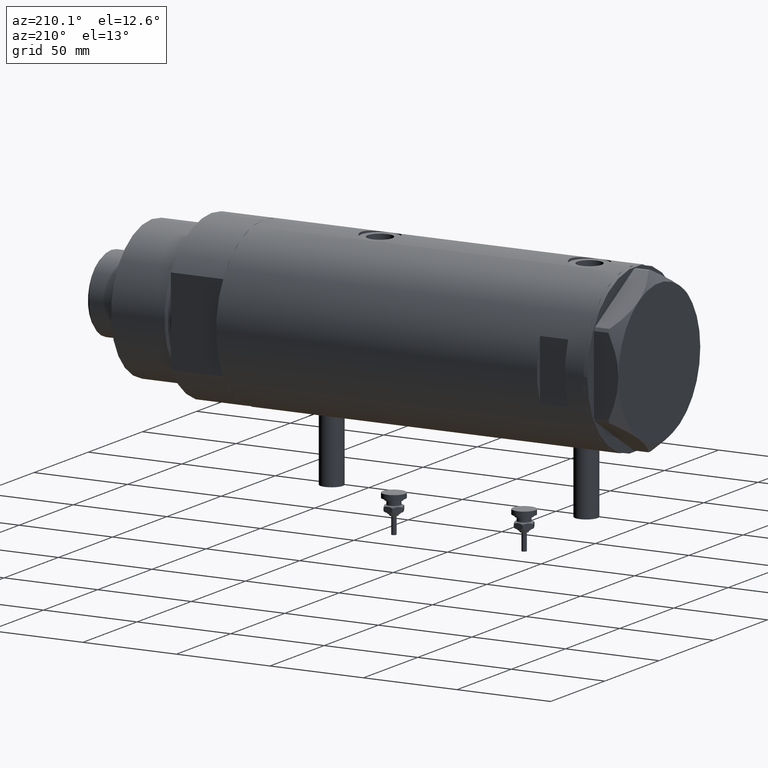
[diagram: clean part render]
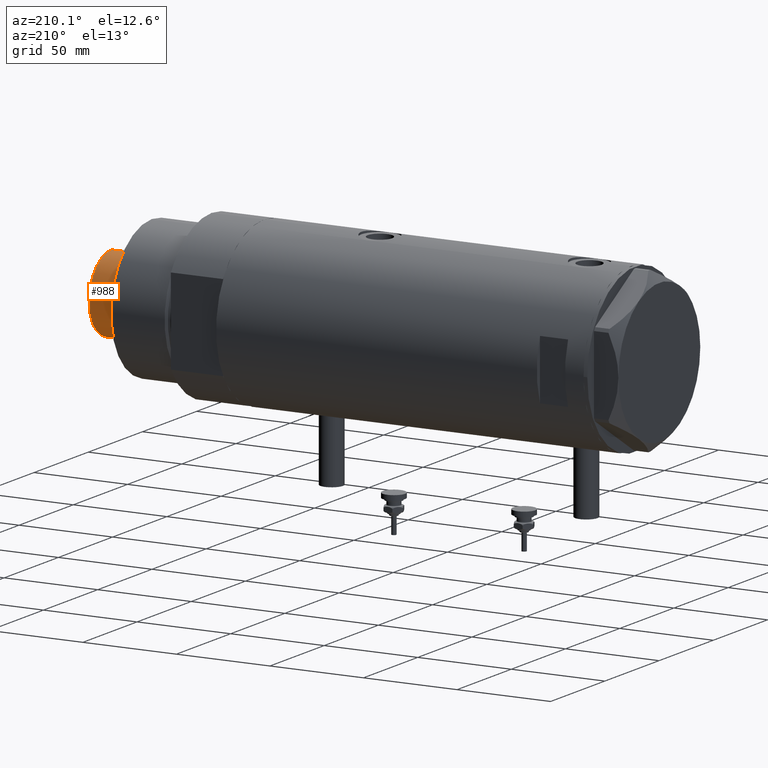
[diagram: same view with one face highlighted and labeled with its STEP entity id]
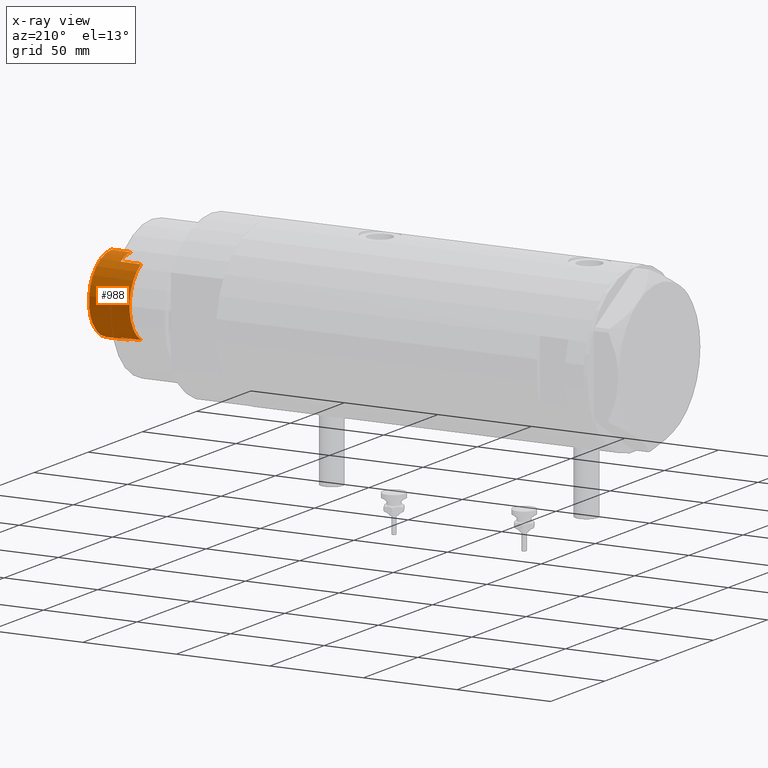
[diagram: x-ray of the same camera — body ghosted, the highlighted face saturated]
A machine part, auxiliary view. The second image highlights one B-rep face of the part: STEP entity #988.
The next image is the same camera in x-ray: the body ghosted, the highlighted face saturated — about 0% of this face is hidden behind the body in this view.
In plain terms, the highlighted cylindrical surface (partial cylindrical patch) has radius 20.5 mm, axis along (-1, -0, 0).
Its self-contained STEP definition (entity closure, byte-faithful):
#51 = CARTESIAN_POINT ( 'NONE',  ( 0.000000000000000000, 0.000000000000000000, 241.3000000000000114 ) ) ;
#77 = AXIS2_PLACEMENT_3D ( 'NONE', #3176, #1446, #5965 ) ;
#213 = ORIENTED_EDGE ( 'NONE', *, *, #1571, .T. ) ;
#341 = VERTEX_POINT ( 'NONE', #4901 ) ;
#496 = CARTESIAN_POINT ( 'NONE',  ( -20.50000000000000355, 0.000000000000000000, 251.9000000000001194 ) ) ;
#502 = VECTOR ( 'NONE', #5921, 1000.000000000000000 ) ;
#512 = LINE ( 'NONE', #3313, #3019 ) ;
#647 = ORIENTED_EDGE ( 'NONE', *, *, #3474, .F. ) ;
#658 = VERTEX_POINT ( 'NONE', #1661 ) ;
#720 = VERTEX_POINT ( 'NONE', #5461 ) ;
#750 = DIRECTION ( 'NONE',  ( 0.000000000000000000, 0.000000000000000000, 1.000000000000000000 ) ) ;
#819 = VERTEX_POINT ( 'NONE', #2845 ) ;
#886 = VERTEX_POINT ( 'NONE', #2559 ) ;
#953 = LINE ( 'NONE', #1367, #502 ) ;
#988 = ADVANCED_FACE ( 'NONE', ( #4192 ), #4095, .T. ) ;
#1006 = DIRECTION ( 'NONE',  ( 1.000000000000000000, 0.000000000000000000, 0.000000000000000000 ) ) ;
#1143 = DIRECTION ( 'NONE',  ( -0.000000000000000000, -0.000000000000000000, -1.000000000000000000 ) ) ;
#1324 = ORIENTED_EDGE ( 'NONE', *, *, #5831, .T. ) ;
#1367 = CARTESIAN_POINT ( 'NONE',  ( -17.97852886083842705, 9.849999999999997868, 241.3000000000000114 ) ) ;
#1446 = DIRECTION ( 'NONE',  ( -0.000000000000000000, -0.000000000000000000, -1.000000000000000000 ) ) ;
#1556 = AXIS2_PLACEMENT_3D ( 'NONE', #2251, #4120, #5519 ) ;
#1571 = EDGE_CURVE ( 'NONE', #886, #819, #1728, .T. ) ;
#1586 = VERTEX_POINT ( 'NONE', #3536 ) ;
#1661 = CARTESIAN_POINT ( 'NONE',  ( 20.50000000000000355, 2.510525938252074481E-15, 251.9000000000001194 ) ) ;
#1662 = AXIS2_PLACEMENT_3D ( 'NONE', #1892, #5619, #1006 ) ;
#1686 = DIRECTION ( 'NONE',  ( 1.000000000000000000, 0.000000000000000000, 0.000000000000000000 ) ) ;
#1728 = CIRCLE ( 'NONE', #4630, 20.50000000000000000 ) ;
#1892 = CARTESIAN_POINT ( 'NONE',  ( 0.000000000000000000, 0.000000000000000000, 230.3000000000000114 ) ) ;
#2064 = VERTEX_POINT ( 'NONE', #3806 ) ;
#2233 = VECTOR ( 'NONE', #3607, 1000.000000000000000 ) ;
#2251 = CARTESIAN_POINT ( 'NONE',  ( 0.000000000000000000, 0.000000000000000000, 251.9000000000001194 ) ) ;
#2260 = ORIENTED_EDGE ( 'NONE', *, *, #2424, .T. ) ;
#2424 = EDGE_CURVE ( 'NONE', #5229, #658, #3578, .T. ) ;
#2559 = CARTESIAN_POINT ( 'NONE',  ( 20.50000000000000000, 2.510525938252074481E-15, 241.3000000000000114 ) ) ;
#2651 = EDGE_LOOP ( 'NONE', ( #2260, #3809, #213, #1324, #3570, #4016, #4944, #647 ) ) ;
#2698 = CARTESIAN_POINT ( 'NONE',  ( 0.000000000000000000, 0.000000000000000000, 241.3000000000000114 ) ) ;
#2845 = CARTESIAN_POINT ( 'NONE',  ( 17.97852886083842705, 9.849999999999997868, 241.3000000000000114 ) ) ;
#2937 = DIRECTION ( 'NONE',  ( 0.000000000000000000, 0.000000000000000000, 1.000000000000000000 ) ) ;
#3019 = VECTOR ( 'NONE', #3346, 1000.000000000000000 ) ;
#3176 = CARTESIAN_POINT ( 'NONE',  ( 0.000000000000000000, 0.000000000000000000, 241.3000000000000114 ) ) ;
#3313 = CARTESIAN_POINT ( 'NONE',  ( 20.50000000000000355, 2.510525938252074481E-15, 241.3000000000000114 ) ) ;
#3346 = DIRECTION ( 'NONE',  ( -0.000000000000000000, -0.000000000000000000, -1.000000000000000000 ) ) ;
#3474 = EDGE_CURVE ( 'NONE', #5229, #720, #5430, .T. ) ;
#3536 = CARTESIAN_POINT ( 'NONE',  ( -17.97852886083842705, 9.849999999999965894, 230.3000000000000114 ) ) ;
#3570 = ORIENTED_EDGE ( 'NONE', *, *, #4683, .T. ) ;
#3578 = CIRCLE ( 'NONE', #1556, 20.50000000000000355 ) ;
#3589 = VECTOR ( 'NONE', #1143, 1000.000000000000000 ) ;
#3607 = DIRECTION ( 'NONE',  ( -0.000000000000000000, -0.000000000000000000, -1.000000000000000000 ) ) ;
#3668 = EDGE_CURVE ( 'NONE', #341, #720, #5826, .T. ) ;
#3806 = CARTESIAN_POINT ( 'NONE',  ( 17.97852886083842705, 9.849999999999997868, 230.3000000000000114 ) ) ;
#3809 = ORIENTED_EDGE ( 'NONE', *, *, #4676, .T. ) ;
#4016 = ORIENTED_EDGE ( 'NONE', *, *, #5761, .F. ) ;
#4044 = LINE ( 'NONE', #5911, #2233 ) ;
#4095 = CYLINDRICAL_SURFACE ( 'NONE', #77, 20.50000000000000355 ) ;
#4120 = DIRECTION ( 'NONE',  ( 0.000000000000000000, 0.000000000000000000, -1.000000000000000000 ) ) ;
#4192 = FACE_OUTER_BOUND ( 'NONE', #2651, .T. ) ;
#4277 = CIRCLE ( 'NONE', #1662, 20.49999999999998934 ) ;
#4295 = DIRECTION ( 'NONE',  ( 1.000000000000000000, 0.000000000000000000, 0.000000000000000000 ) ) ;
#4630 = AXIS2_PLACEMENT_3D ( 'NONE', #2698, #750, #1686 ) ;
#4676 = EDGE_CURVE ( 'NONE', #658, #886, #512, .T. ) ;
#4683 = EDGE_CURVE ( 'NONE', #2064, #1586, #4277, .T. ) ;
#4901 = CARTESIAN_POINT ( 'NONE',  ( -17.97852886083842705, 9.849999999999997868, 241.3000000000000114 ) ) ;
#4944 = ORIENTED_EDGE ( 'NONE', *, *, #3668, .T. ) ;
#4957 = CARTESIAN_POINT ( 'NONE',  ( -20.50000000000000355, 0.000000000000000000, 241.3000000000000114 ) ) ;
#5229 = VERTEX_POINT ( 'NONE', #496 ) ;
#5430 = LINE ( 'NONE', #4957, #3589 ) ;
#5461 = CARTESIAN_POINT ( 'NONE',  ( -20.50000000000000000, 0.000000000000000000, 241.3000000000000114 ) ) ;
#5519 = DIRECTION ( 'NONE',  ( 1.000000000000000000, 0.000000000000000000, 0.000000000000000000 ) ) ;
#5544 = AXIS2_PLACEMENT_3D ( 'NONE', #51, #2937, #4295 ) ;
#5619 = DIRECTION ( 'NONE',  ( 0.000000000000000000, 0.000000000000000000, 1.000000000000000000 ) ) ;
#5761 = EDGE_CURVE ( 'NONE', #341, #1586, #953, .T. ) ;
#5826 = CIRCLE ( 'NONE', #5544, 20.50000000000000000 ) ;
#5831 = EDGE_CURVE ( 'NONE', #819, #2064, #4044, .T. ) ;
#5911 = CARTESIAN_POINT ( 'NONE',  ( 17.97852886083842705, 9.849999999999997868, 241.3000000000000114 ) ) ;
#5921 = DIRECTION ( 'NONE',  ( -0.000000000000000000, -0.000000000000000000, -1.000000000000000000 ) ) ;
#5965 = DIRECTION ( 'NONE',  ( -1.000000000000000000, 0.000000000000000000, 0.000000000000000000 ) ) ;